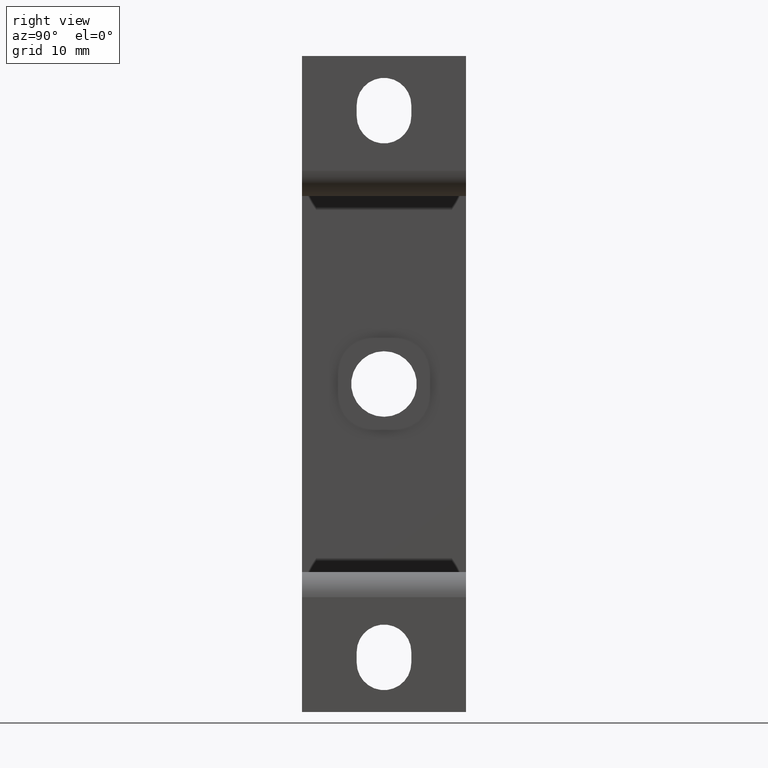
[diagram: clean part render]
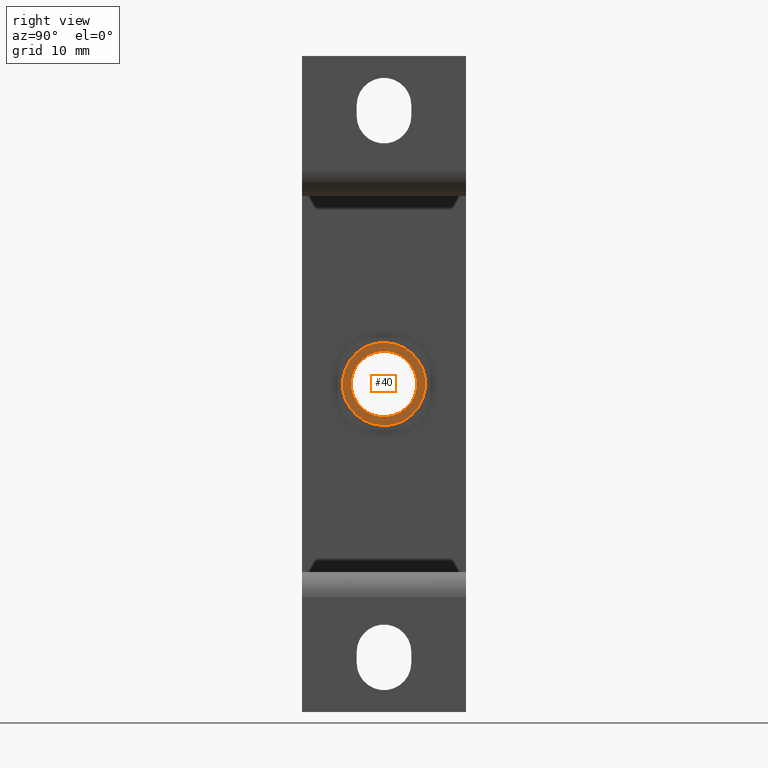
[diagram: same view with one face highlighted and labeled with its STEP entity id]
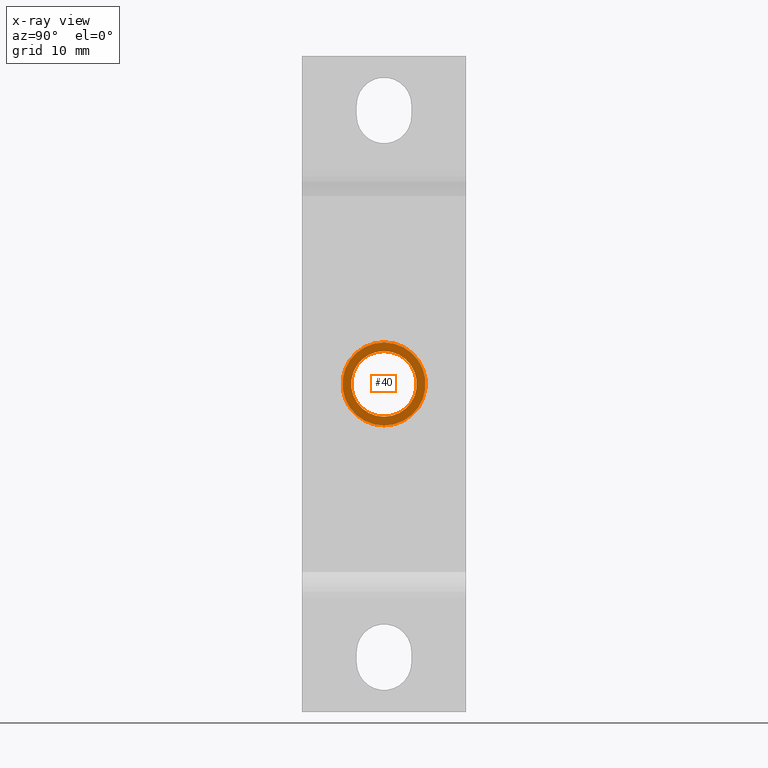
[diagram: x-ray of the same camera — body ghosted, the highlighted face saturated]
A machine part, right view. The second image highlights one B-rep face of the part: STEP entity #40.
The next image is the same camera in x-ray: the body ghosted, the highlighted face saturated — about 0% of this face is hidden behind the body in this view.
In plain terms, the highlighted planar face has unit normal (-1, 0, 0).
Its self-contained STEP definition (entity closure, byte-faithful):
#40=ADVANCED_FACE('',(#74,#75),#73,.F.);
#73=PLANE('',#413);
#74=FACE_OUTER_BOUND('',#414,.T.);
#75=FACE_BOUND('',#415,.T.);
#410=CARTESIAN_POINT('',(-1.92000000000E+01,-1.53981516825E+01,2.12600000000E+01));
#411=DIRECTION('',(-1.00000000000E+00,0.00000000000E+00,0.00000000000E+00));
#412=DIRECTION('',(0.00000000000E+00,0.00000000000E+00,1.00000000000E+00));
#413=AXIS2_PLACEMENT_3D('',#410,#411,#412);
#414=EDGE_LOOP('',(#624,#625));
#415=EDGE_LOOP('',(#626,#627));
#624=ORIENTED_EDGE('',*,*,#800,.F.);
#625=ORIENTED_EDGE('',*,*,#801,.F.);
#626=ORIENTED_EDGE('',*,*,#802,.T.);
#627=ORIENTED_EDGE('',*,*,#803,.T.);
#800=EDGE_CURVE('',#888,#889,#890,.T.);
#801=EDGE_CURVE('',#889,#888,#896,.T.);
#802=EDGE_CURVE('',#902,#903,#904,.T.);
#803=EDGE_CURVE('',#903,#902,#910,.T.);
#888=VERTEX_POINT('',#1474);
#889=VERTEX_POINT('',#1475);
#890=CIRCLE('',#1479,3.80000000000E+00);
#896=CIRCLE('',#1483,3.80000000000E+00);
#902=VERTEX_POINT('',#1484);
#903=VERTEX_POINT('',#1485);
#904=CIRCLE('',#1489,3.00000000000E+00);
#910=CIRCLE('',#1493,3.00000000000E+00);
#1474=CARTESIAN_POINT('',(-1.92000000000E+01,-7.50000000000E+00,2.62000000000E+01));
#1475=CARTESIAN_POINT('',(-1.92000000000E+01,-7.50000000000E+00,3.38000000000E+01));
#1476=CARTESIAN_POINT('',(-1.92000000000E+01,-7.50000000000E+00,3.00000000000E+01));
#1477=DIRECTION('',(-1.00000000000E+00,0.00000000000E+00,0.00000000000E+00));
#1478=DIRECTION('',(-0.00000000000E+00,-0.00000000000E+00,1.00000000000E+00));
#1479=AXIS2_PLACEMENT_3D('',#1476,#1477,#1478);
#1480=CARTESIAN_POINT('',(-1.92000000000E+01,-7.50000000000E+00,3.00000000000E+01));
#1481=DIRECTION('',(-1.00000000000E+00,0.00000000000E+00,0.00000000000E+00));
#1482=DIRECTION('',(-0.00000000000E+00,-0.00000000000E+00,1.00000000000E+00));
#1483=AXIS2_PLACEMENT_3D('',#1480,#1481,#1482);
#1484=CARTESIAN_POINT('',(-1.92000000000E+01,-7.50000000000E+00,2.70000000000E+01));
#1485=CARTESIAN_POINT('',(-1.92000000000E+01,-7.50000000000E+00,3.30000000000E+01));
#1486=CARTESIAN_POINT('',(-1.92000000000E+01,-7.50000000000E+00,3.00000000000E+01));
#1487=DIRECTION('',(-1.00000000000E+00,0.00000000000E+00,0.00000000000E+00));
#1488=DIRECTION('',(-0.00000000000E+00,-0.00000000000E+00,-1.00000000000E+00));
#1489=AXIS2_PLACEMENT_3D('',#1486,#1487,#1488);
#1490=CARTESIAN_POINT('',(-1.92000000000E+01,-7.50000000000E+00,3.00000000000E+01));
#1491=DIRECTION('',(-1.00000000000E+00,0.00000000000E+00,0.00000000000E+00));
#1492=DIRECTION('',(-0.00000000000E+00,-0.00000000000E+00,-1.00000000000E+00));
#1493=AXIS2_PLACEMENT_3D('',#1490,#1491,#1492);